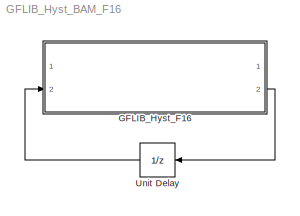
MODEL GFLIB_Hyst_BAM_F16
KIND model
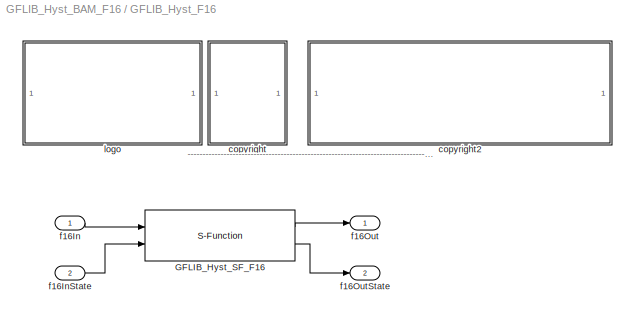
BLOCK [SubSystem] GFLIB_Hyst_F16
  FunctionWithSeparateData = off
  MaskCallbackString = |||
  MaskDescription = Bit accurate model of hysteresis function. All parameters as well as input and output are 16-bit integers.
  MaskDisplay = color('black');port_label('input',1,'f16In');port_label('input',2,'f16InState');port_label('output',1,'f16Out');port_label('output',2,'f16OutState');color('black');disp('GFLIB_Hyst_F16');color('blue');text(tX,tY, 'BAM', 'horizontalAlignment', 'center');
  MaskEnableString = on,on,on,on
  MaskHideContents = off
  MaskIconFrame = on
  MaskIconOpaque = on
  MaskIconRotate = none
  MaskIconUnits = pixels
  MaskInitialization = pos = get_param(gcb, 'Position');width = pos(3) - pos(1); height = pos(4) - pos(2);tX=width/2;tY=height*0.9;
  MaskPortRotate = default
  MaskPromptString = f16HystOn|f16HystOff|f16OutValOn|f16OutValOff
  MaskStyleString = edit,edit,edit,edit
  MaskTabNameString = ,,,
  MaskToolTipString = on,on,on,on
  MaskTunableValueString = on,on,on,on
  MaskType = GFLIB_Hyst_F16
  MaskValueString = f16HystOn|f16HystOff|f16OutValOn|f16OutValOff
  MaskVarAliasString = ,,,
  MaskVariables = f16HystOn=@1;f16HystOff=@2;f16OutValOn=@3;f16OutValOff=@4;
  MaskVisibilityString = on,on,on,on
  MinAlgLoopOccurrences = off
  Opaque = off
  Ports = [2, 2]
  PropExecContextOutsideSubsystem = off
  RTWSystemCode = Auto
  RequestExecContextInheritance = off
BLOCK [S-Function] GFLIB_Hyst_F16/GFLIB_Hyst_SF_F16
  EnableBusSupport = off
  FunctionName = GFLIB_Hyst_SF_F16
  Parameters = f16HystOn,f16HystOff,f16OutValOn,f16OutValOff
  Ports = [2, 2]
BLOCK [SubSystem] GFLIB_Hyst_F16/<copyright redacted>
  FunctionWithSeparateData = off
  MaskDisplay = text(10,90,'FILE:');text(10,75,'DESRIPTION:')text(10,60,'<copyright redacted>
  MaskHideContents = off
  MaskIconFrame = off
  MaskIconOpaque = on
  MaskIconRotate = none
  MaskIconUnits = pixels
  MaskPortRotate = default
  MinAlgLoopOccurrences = off
  Opaque = off
  Ports = []
  PropExecContextOutsideSubsystem = off
  RTWSystemCode = Auto
  RequestExecContextInheritance = off
BLOCK [SubSystem] GFLIB_Hyst_F16/copyright2
  FunctionWithSeparateData = off
  MaskDisplay = text(10,90,'GFLIB_Hyst_BAM_F16.mdl');text(10,75,'Hysteresis function.');text(10,60,'Freescale')text(10,45,'0.1');text(10,30,'09-Apr-2014');
  MaskHideContents = off
  MaskIconFrame = off
  MaskIconOpaque = on
  MaskIconRotate = none
  MaskIconUnits = pixels
  MaskPortRotate = default
  MinAlgLoopOccurrences = off
  Opaque = off
  Ports = []
  PropExecContextOutsideSubsystem = off
  RTWSystemCode = Auto
  RequestExecContextInheritance = off
BLOCK [Inport] GFLIB_Hyst_F16/f16In
  IconDisplay = Port number
  OutDataType = fixdt(1, 16)
  OutScaling = 2^0
BLOCK [Inport] GFLIB_Hyst_F16/f16InState
  IconDisplay = Port number
  OutDataType = fixdt(1, 16)
  OutScaling = 2^0
  Port = 2
BLOCK [Outport] GFLIB_Hyst_F16/f16Out
  IconDisplay = Port number
  OutDataType = fixdt(1, 16)
  OutScaling = 2^0
BLOCK [Outport] GFLIB_Hyst_F16/f16OutState
  IconDisplay = Port number
  OutDataType = fixdt(1, 16)
  OutScaling = 2^0
  Port = 2
BLOCK [SubSystem] GFLIB_Hyst_F16/logo
  FunctionWithSeparateData = off
  MaskDisplay = image(imread('logo.jpg'))
  MaskHideContents = off
  MaskIconFrame = off
  MaskIconOpaque = on
  MaskIconRotate = none
  MaskIconUnits = autoscale
  MaskPortRotate = default
  MinAlgLoopOccurrences = off
  Opaque = off
  Ports = []
  PropExecContextOutsideSubsystem = off
  RTWSystemCode = Auto
  RequestExecContextInheritance = off
BLOCK [UnitDelay] Unit Delay
  SampleTime = -1
ANNOTATION GFLIB_Hyst_F16: ---------------------------------------------------------------------------------------------------------------------------------------------------------------------------------------------------
LINE GFLIB_Hyst_F16/GFLIB_Hyst_SF_F16:1 -> GFLIB_Hyst_F16/f16Out:1
LINE GFLIB_Hyst_F16/GFLIB_Hyst_SF_F16:2 -> GFLIB_Hyst_F16/f16OutState:1
LINE GFLIB_Hyst_F16/f16In:1 -> GFLIB_Hyst_F16/GFLIB_Hyst_SF_F16:1
LINE GFLIB_Hyst_F16/f16InState:1 -> GFLIB_Hyst_F16/GFLIB_Hyst_SF_F16:2
LINE GFLIB_Hyst_F16:2 -> Unit Delay:1
LINE Unit Delay:1 -> GFLIB_Hyst_F16:2
